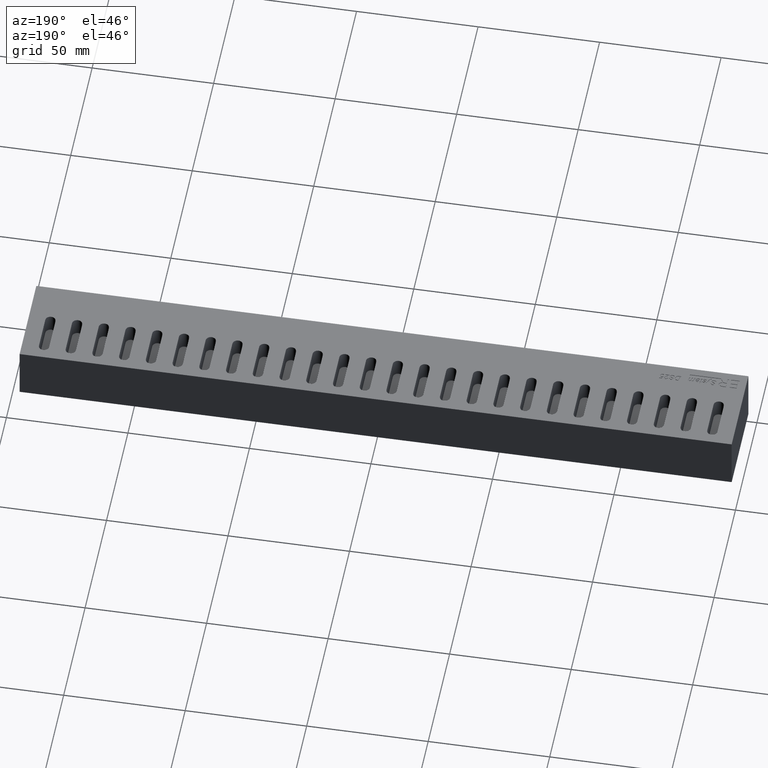
[diagram: clean part render]
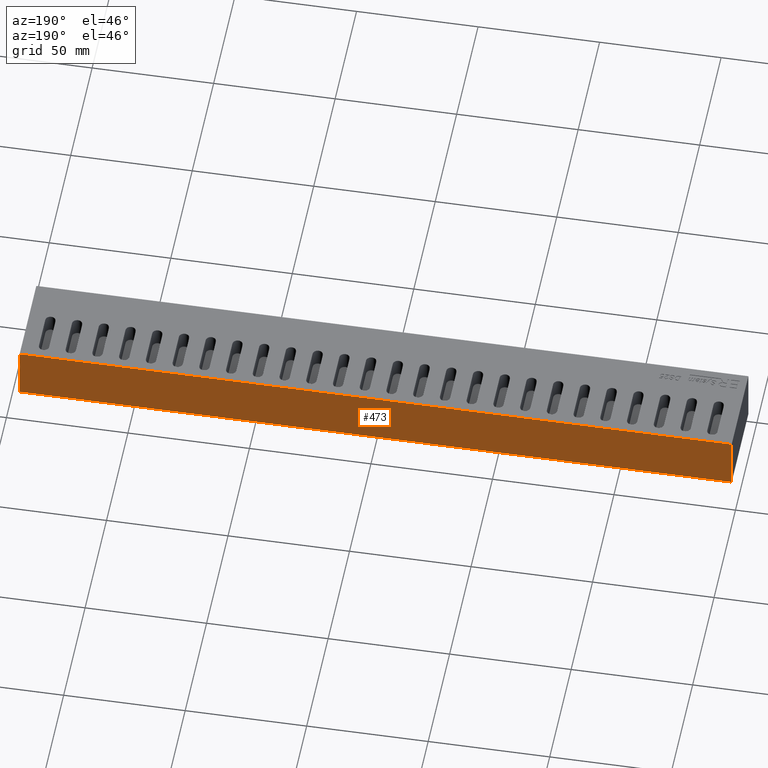
[diagram: same view with one face highlighted and labeled with its STEP entity id]
A machine part, auxiliary view. The second image highlights one B-rep face of the part: STEP entity #473.
In plain terms, the highlighted planar face has unit normal (-0, -1, 0).
Its self-contained STEP definition (entity closure, byte-faithful):
#473 = ADVANCED_FACE( '', ( #1115 ), #1116, .F. );
#1115 = FACE_OUTER_BOUND( '', #1898, .T. );
#1116 = PLANE( '', #1899 );
#1898 = EDGE_LOOP( '', ( #3685, #3686, #3687, #3688 ) );
#1899 = AXIS2_PLACEMENT_3D( '', #3689, #3690, #3691 );
#3685 = ORIENTED_EDGE( '', *, *, #5165, .T. );
#3686 = ORIENTED_EDGE( '', *, *, #5675, .F. );
#3687 = ORIENTED_EDGE( '', *, *, #5367, .F. );
#3688 = ORIENTED_EDGE( '', *, *, #5676, .T. );
#3689 = CARTESIAN_POINT( '', ( 146.500000000000, 39.0000000000000, 22.0000000000000 ) );
#3690 = DIRECTION( '', ( -1.65775622277647E-016, -1.00000000000000, 0.000000000000000 ) );
#3691 = DIRECTION( '', ( 1.00000000000000, -1.65775622277647E-016, 0.000000000000000 ) );
#5165 = EDGE_CURVE( '', #6042, #6039, #6043, .T. );
#5367 = EDGE_CURVE( '', #6419, #6414, #6421, .T. );
#5675 = EDGE_CURVE( '', #6414, #6039, #6869, .T. );
#5676 = EDGE_CURVE( '', #6419, #6042, #6870, .T. );
#6039 = VERTEX_POINT( '', #7394 );
#6042 = VERTEX_POINT( '', #7398 );
#6043 = LINE( '', #7399, #7400 );
#6414 = VERTEX_POINT( '', #8325 );
#6419 = VERTEX_POINT( '', #8332 );
#6421 = LINE( '', #8335, #8336 );
#6869 = LINE( '', #9521, #9522 );
#6870 = LINE( '', #9523, #9524 );
#7394 = CARTESIAN_POINT( '', ( -146.500000000000, 39.0000000000000, 0.000000000000000 ) );
#7398 = CARTESIAN_POINT( '', ( 146.500000000000, 39.0000000000000, 0.000000000000000 ) );
#7399 = CARTESIAN_POINT( '', ( 146.500000000000, 39.0000000000000, 0.000000000000000 ) );
#7400 = VECTOR( '', #10223, 1000.00000000000 );
#8325 = CARTESIAN_POINT( '', ( -146.500000000000, 39.0000000000000, 22.0000000000000 ) );
#8332 = CARTESIAN_POINT( '', ( 146.500000000000, 39.0000000000000, 22.0000000000000 ) );
#8335 = CARTESIAN_POINT( '', ( 146.500000000000, 39.0000000000000, 22.0000000000000 ) );
#8336 = VECTOR( '', #10502, 1000.00000000000 );
#9521 = CARTESIAN_POINT( '', ( -146.500000000000, 39.0000000000000, 22.0000000000000 ) );
#9522 = VECTOR( '', #10769, 1000.00000000000 );
#9523 = CARTESIAN_POINT( '', ( 146.500000000000, 39.0000000000000, 22.0000000000000 ) );
#9524 = VECTOR( '', #10770, 1000.00000000000 );
#10223 = DIRECTION( '', ( -1.00000000000000, 1.65775622277647E-016, 0.000000000000000 ) );
#10502 = DIRECTION( '', ( -1.00000000000000, 1.65775622277647E-016, 0.000000000000000 ) );
#10769 = DIRECTION( '', ( 0.000000000000000, 0.000000000000000, -1.00000000000000 ) );
#10770 = DIRECTION( '', ( 0.000000000000000, 0.000000000000000, -1.00000000000000 ) );